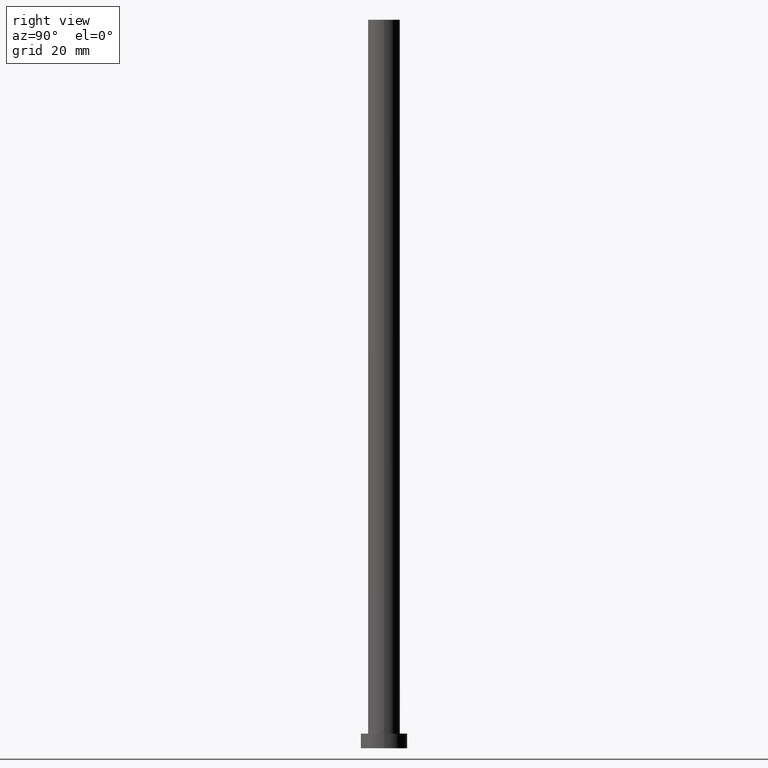
[diagram: clean part render]
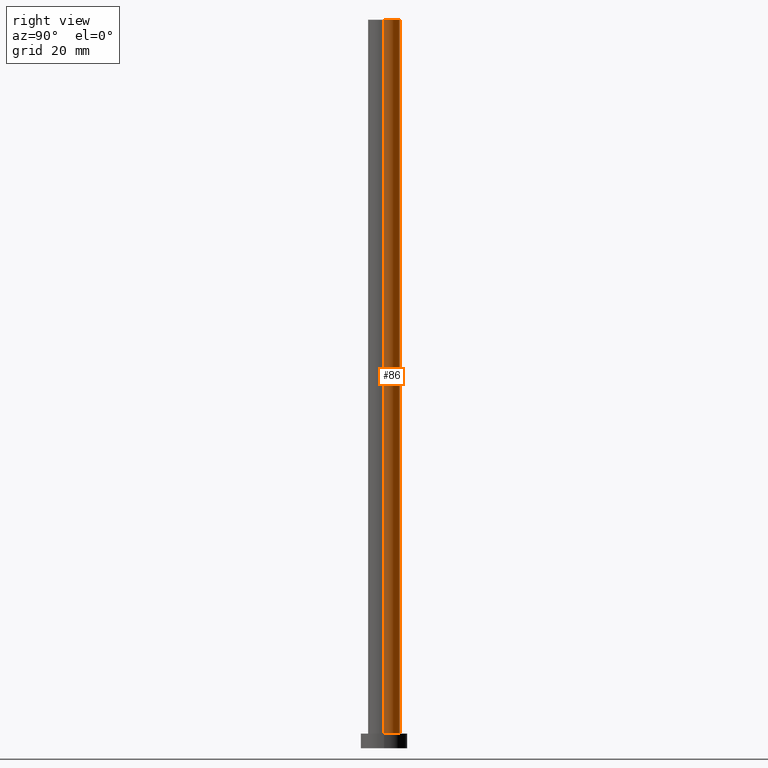
[diagram: same view with one face highlighted and labeled with its STEP entity id]
A machine part, right view. The second image highlights one B-rep face of the part: STEP entity #86.
In plain terms, the highlighted cylindrical surface (edge-blend (fillet) strip) has radius 5.5 mm, axis along (-0, -0, -1).
Its self-contained STEP definition (entity closure, byte-faithful):
#1 = CARTESIAN_POINT ( 'NONE',  ( -5.500000000000000000, 0.000000000000000000, 250.0000000000000000 ) ) ;
#9 = CARTESIAN_POINT ( 'NONE',  ( 5.500000000000000000, 6.735557395310442023E-16, 250.0000000000000000 ) ) ;
#13 = DIRECTION ( 'NONE',  ( 1.000000000000000000, 0.000000000000000000, 0.000000000000000000 ) ) ;
#18 = DIRECTION ( 'NONE',  ( 0.000000000000000000, 0.000000000000000000, 1.000000000000000000 ) ) ;
#21 = VERTEX_POINT ( 'NONE', #45 ) ;
#23 = CARTESIAN_POINT ( 'NONE',  ( -5.500000000000000000, 0.000000000000000000, 250.0000000000000000 ) ) ;
#45 = CARTESIAN_POINT ( 'NONE',  ( 5.500000000000000000, 6.735557395310442023E-16, 5.000000000000000000 ) ) ;
#49 = EDGE_CURVE ( 'NONE', #21, #233, #196, .T. ) ;
#52 = EDGE_CURVE ( 'NONE', #75, #233, #67, .T. ) ;
#53 = LINE ( 'NONE', #9, #219 ) ;
#67 = LINE ( 'NONE', #1, #150 ) ;
#69 = CARTESIAN_POINT ( 'NONE',  ( 0.000000000000000000, 0.000000000000000000, 250.0000000000000000 ) ) ;
#74 = DIRECTION ( 'NONE',  ( -0.000000000000000000, -0.000000000000000000, -1.000000000000000000 ) ) ;
#75 = VERTEX_POINT ( 'NONE', #23 ) ;
#81 = VERTEX_POINT ( 'NONE', #251 ) ;
#83 = ORIENTED_EDGE ( 'NONE', *, *, #103, .F. ) ;
#85 = AXIS2_PLACEMENT_3D ( 'NONE', #234, #165, #224 ) ;
#86 = ADVANCED_FACE ( 'NONE', ( #92 ), #240, .T. ) ;
#92 = FACE_OUTER_BOUND ( 'NONE', #160, .T. ) ;
#98 = ORIENTED_EDGE ( 'NONE', *, *, #52, .F. ) ;
#103 = EDGE_CURVE ( 'NONE', #81, #75, #231, .T. ) ;
#128 = AXIS2_PLACEMENT_3D ( 'NONE', #176, #18, #13 ) ;
#131 = AXIS2_PLACEMENT_3D ( 'NONE', #69, #143, #218 ) ;
#133 = CARTESIAN_POINT ( 'NONE',  ( -5.500000000000000000, 0.000000000000000000, 5.000000000000000000 ) ) ;
#143 = DIRECTION ( 'NONE',  ( -0.000000000000000000, -0.000000000000000000, -1.000000000000000000 ) ) ;
#145 = ORIENTED_EDGE ( 'NONE', *, *, #49, .T. ) ;
#148 = DIRECTION ( 'NONE',  ( -0.000000000000000000, -0.000000000000000000, -1.000000000000000000 ) ) ;
#150 = VECTOR ( 'NONE', #148, 1000.000000000000000 ) ;
#152 = ORIENTED_EDGE ( 'NONE', *, *, #247, .T. ) ;
#160 = EDGE_LOOP ( 'NONE', ( #83, #152, #145, #98 ) ) ;
#165 = DIRECTION ( 'NONE',  ( 0.000000000000000000, 0.000000000000000000, 1.000000000000000000 ) ) ;
#176 = CARTESIAN_POINT ( 'NONE',  ( 0.000000000000000000, 0.000000000000000000, 250.0000000000000000 ) ) ;
#196 = CIRCLE ( 'NONE', #85, 5.500000000000000000 ) ;
#218 = DIRECTION ( 'NONE',  ( -1.000000000000000000, 0.000000000000000000, 0.000000000000000000 ) ) ;
#219 = VECTOR ( 'NONE', #74, 1000.000000000000000 ) ;
#224 = DIRECTION ( 'NONE',  ( 1.000000000000000000, 0.000000000000000000, 0.000000000000000000 ) ) ;
#231 = CIRCLE ( 'NONE', #128, 5.500000000000000000 ) ;
#233 = VERTEX_POINT ( 'NONE', #133 ) ;
#234 = CARTESIAN_POINT ( 'NONE',  ( 0.000000000000000000, 0.000000000000000000, 5.000000000000000000 ) ) ;
#240 = CYLINDRICAL_SURFACE ( 'NONE', #131, 5.500000000000000000 ) ;
#247 = EDGE_CURVE ( 'NONE', #81, #21, #53, .T. ) ;
#251 = CARTESIAN_POINT ( 'NONE',  ( 5.500000000000000000, 6.735557395310442023E-16, 250.0000000000000000 ) ) ;